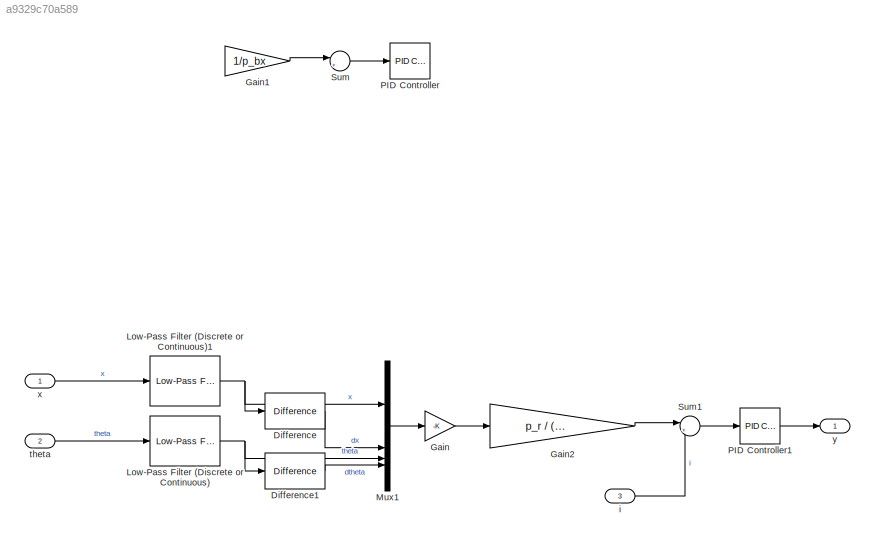
MODEL slx_a9329c70a589
KIND model
CONFIG AbsTol = auto
CONFIG EnableMultiTasking = off
CONFIG FixedStep = 1e-05
CONFIG MaxStep = auto
CONFIG MinStep = auto
CONFIG RelTol = 1e-3
CONFIG SampleTimeConstraint = Unconstrained
CONFIG SolverName = FixedStepAuto
CONFIG StartTime = 0.0
CONFIG StopTime = Inf
BLOCK [Reference] Difference  REF=simulink/Discrete/Difference
  SourceBlock = simulink/Discrete/Difference
  SourceType = Difference
BLOCK [Reference] Difference1  REF=simulink/Discrete/Difference
  SourceBlock = simulink/Discrete/Difference
  SourceType = Difference
BLOCK [Gain] Gain
  Gain = -K
  Multiplication = Matrix(K*u)
BLOCK [Gain] Gain1
  Commented = on
  Gain = 1/p_bx
BLOCK [Gain] Gain2
  Gain = p_r / (p_G * p_Kt * 2)
BLOCK [Reference] Low-Pass Filter (Discrete or Continuous)  REF=eeGeneralControl/Low-Pass Filter
(Discrete or Continuous)
  LibrarySourceBlock = ee_sl_lib/General Control/Low-Pass Filter\n(Discrete or Continuous)
  SourceBlock = eeGeneralControl/Low-Pass Filter\n(Discrete or Continuous)
  SourceType = Low-Pass Filter (Discrete or Continuous)
BLOCK [Reference] Low-Pass Filter (Discrete or Continuous)1  REF=eeGeneralControl/Low-Pass Filter
(Discrete or Continuous)
  LibrarySourceBlock = ee_sl_lib/General Control/Low-Pass Filter\n(Discrete or Continuous)
  SourceBlock = eeGeneralControl/Low-Pass Filter\n(Discrete or Continuous)
  SourceType = Low-Pass Filter (Discrete or Continuous)
BLOCK [Mux] Mux1
  DisplayOption = bar
BLOCK [Reference] PID Controller  REF=slpidlib/PID Controller
  Commented = on
  LibrarySourceBlock = simulink/Continuous/PID Controller
  SourceBlock = slpidlib/PID Controller
  SourceType = PID 1dof
BLOCK [Reference] PID Controller1  REF=slpidlib/PID Controller
  LibrarySourceBlock = simulink/Continuous/PID Controller
  SourceBlock = slpidlib/PID Controller
  SourceType = PID 1dof
BLOCK [Sum] Sum
  Commented = on
  Inputs = |+-
  NameLocation = top
BLOCK [Sum] Sum1
  Inputs = |+-
  NameLocation = top
BLOCK [Inport] i
  OutDataTypeStr = double
  Port = 3
  PortDimensions = [1 1]
  SamplingMode = Sample based
  SignalType = real
BLOCK [Inport] theta
  OutDataTypeStr = double
  Port = 2
  PortDimensions = [1 1]
  SamplingMode = Sample based
  SignalType = real
BLOCK [Inport] x
  OutDataTypeStr = double
  PortDimensions = [1 1]
  SamplingMode = Sample based
  SignalType = real
BLOCK [Outport] y
  OutDataTypeStr = double
  PortDimensions = [1 1]
  SamplingMode = Sample based
  SignalType = real
LINE Difference1:1 -> Mux1:4
LINE Difference:1 -> Mux1:2
LINE Gain1:1 -> Sum:1
LINE Gain2:1 -> Sum1:1
LINE Gain:1 -> Gain2:1
NET Low-Pass Filter (Discrete or Continuous)1:1 -> Difference:1, Mux1:1
NET Low-Pass Filter (Discrete or Continuous):1 -> Difference1:1, Mux1:3
LINE Mux1:1 -> Gain:1
LINE PID Controller1:1 -> y:1
LINE Sum1:1 -> PID Controller1:1
LINE Sum:1 -> PID Controller:1
LINE i:1 -> Sum1:2
LINE theta:1 -> Low-Pass Filter (Discrete or Continuous):1
LINE x:1 -> Low-Pass Filter (Discrete or Continuous)1:1
note: NET lines group one-source signal fan-out (src -> all destinations, sorted); 1:1 wires keep LINE
